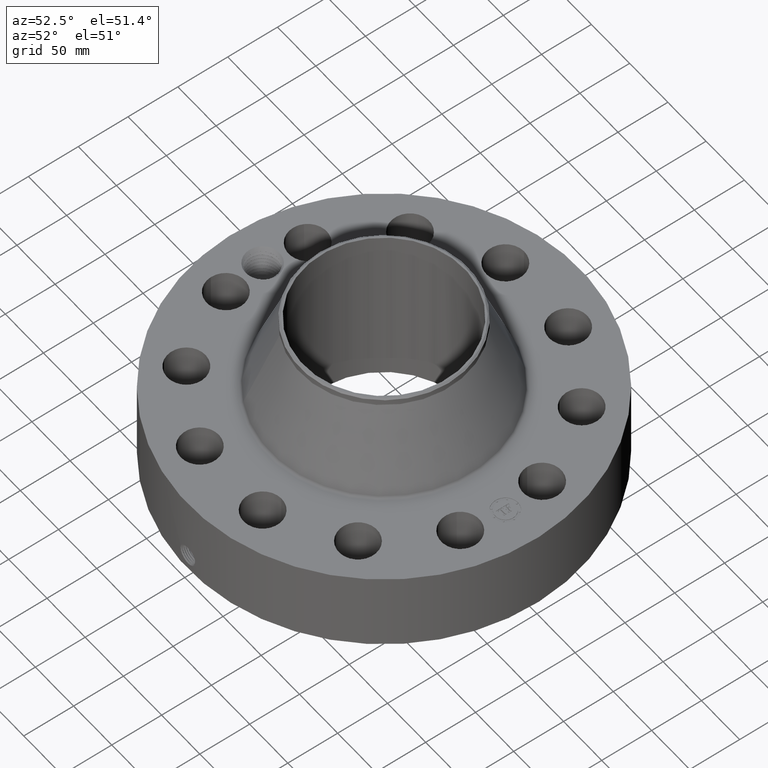
[diagram: clean part render]
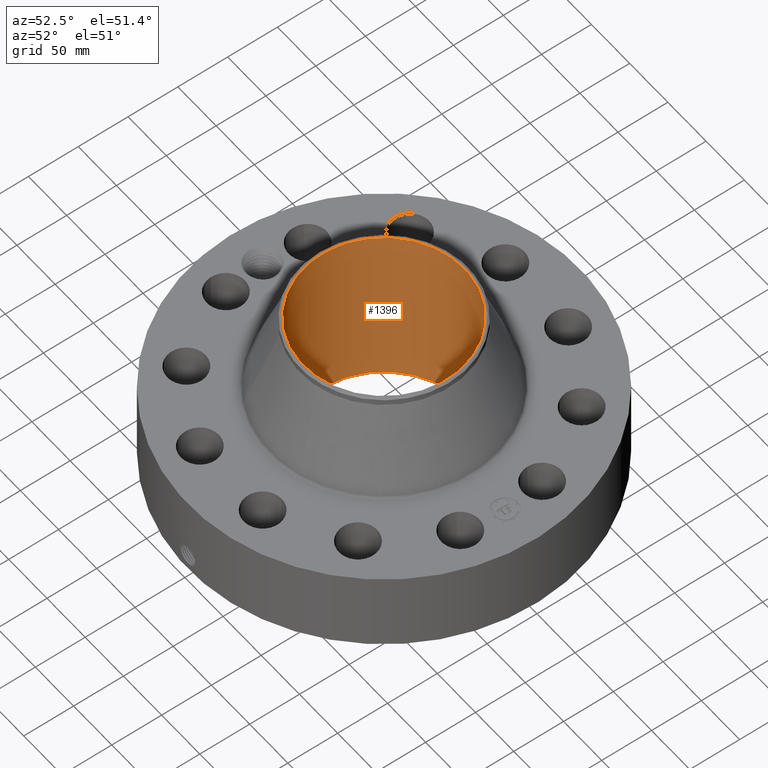
[diagram: same view with one face highlighted and labeled with its STEP entity id]
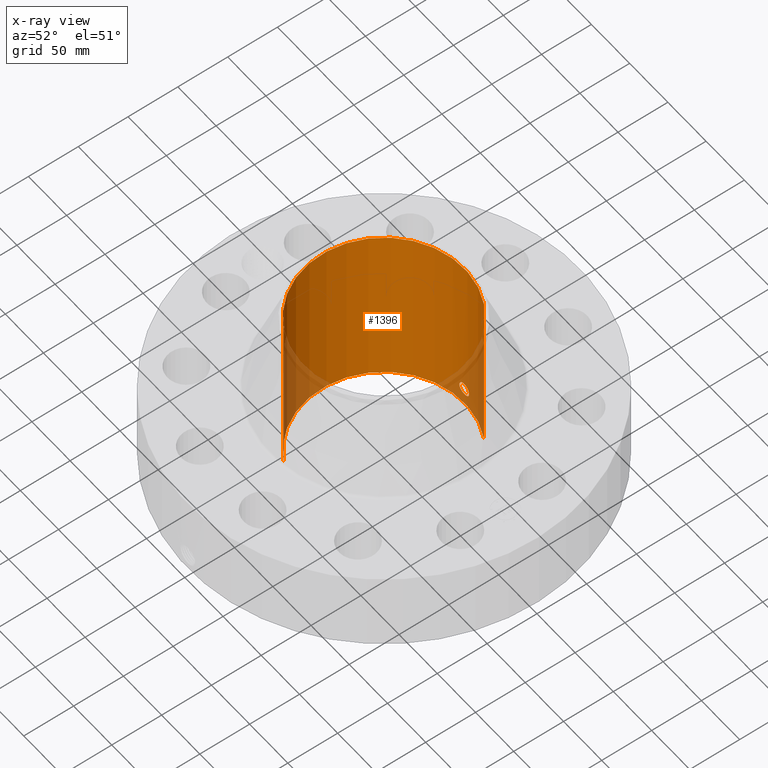
[diagram: x-ray of the same camera — body ghosted, the highlighted face saturated]
A machine part, auxiliary view. The second image highlights one B-rep face of the part: STEP entity #1396.
The next image is the same camera in x-ray: the body ghosted, the highlighted face saturated — about 13% of this face is hidden behind the body in this view.
In plain terms, the highlighted cylindrical surface (partial cylindrical patch) has radius 80.7339 mm, axis along (0, 0, -1).
Its self-contained STEP definition (entity closure, byte-faithful):
#262=AXIS2_PLACEMENT_3D('Circle Axis2P3D',#260,#261,$) ;
#1273=AXIS2_PLACEMENT_3D('Cylinder Axis2P3D',#1270,#1271,#1272) ;
#1345=AXIS2_PLACEMENT_3D('Circle Axis2P3D',#1343,#1344,$) ;
#255=CARTESIAN_POINT('Vertex',(1.52385407446,2.78939617298,0.250000000001)) ;
#257=CARTESIAN_POINT('Vertex',(-1.52385407446,-2.78939617298,0.250000000001)) ;
#260=CARTESIAN_POINT('Axis2P3D Location',(0.,0.,0.250000000001)) ;
#1270=CARTESIAN_POINT('Axis2P3D Location',(0.,0.,3.62500000001)) ;
#1279=CARTESIAN_POINT('Vertex',(1.52385407446,2.78939617298,7.00000000003)) ;
#1281=CARTESIAN_POINT('Vertex',(-1.52385407446,-2.78939617298,7.00000000003)) ;
#1284=CARTESIAN_POINT('Line Origine',(1.52385407446,2.78939617298,3.62500000001)) ;
#1289=CARTESIAN_POINT('Line Origine',(-1.52385407446,-2.78939617298,3.62500000001)) ;
#1343=CARTESIAN_POINT('Axis2P3D Location',(0.,0.,7.00000000003)) ;
#1355=CARTESIAN_POINT('Control Point',(0.219395640473,3.1709190786,1.05985638466)) ;
#1356=CARTESIAN_POINT('Control Point',(0.206922189068,3.17178211572,1.0826888843)) ;
#1357=CARTESIAN_POINT('Control Point',(0.191480810284,3.17278887632,1.10389454379)) ;
#1358=CARTESIAN_POINT('Control Point',(0.173351841678,3.1738614209,1.12296279348)) ;
#1359=CARTESIAN_POINT('Control Point',(0.112183050787,3.1769616099,1.17241635118)) ;
#1360=CARTESIAN_POINT('Control Point',(0.035062488218,3.1789757641,1.19595449785)) ;
#1361=CARTESIAN_POINT('Control Point',(-0.0194750051264,3.17912781359,1.19761225755)) ;
#1362=CARTESIAN_POINT('Control Point',(-0.124035135184,3.17691563962,1.17251375449)) ;
#1363=CARTESIAN_POINT('Control Point',(-0.20306481687,3.17232808007,1.09970151976)) ;
#1364=CARTESIAN_POINT('Control Point',(-0.23206868723,3.17006491948,1.05354325391)) ;
#1365=CARTESIAN_POINT('Control Point',(-0.255816467622,3.16819544329,0.975365092802)) ;
#1366=CARTESIAN_POINT('Control Point',(-0.248325198608,3.16878463345,0.895921162084)) ;
#1367=CARTESIAN_POINT('Control Point',(-0.242090410949,3.16928244519,0.869290623253)) ;
#1368=CARTESIAN_POINT('Control Point',(-0.232341542986,3.17002335263,0.843840930947)) ;
#1369=CARTESIAN_POINT('Control Point',(-0.219395640473,3.1709190786,0.820143615352)) ;
#1370=CARTESIAN_POINT('Vertex',(0.219395640473,3.1709190786,1.05985638466)) ;
#1372=CARTESIAN_POINT('Vertex',(-0.219395640473,3.1709190786,0.820143615352)) ;
#1376=CARTESIAN_POINT('Control Point',(-0.219395640473,3.1709190786,0.820143615352)) ;
#1377=CARTESIAN_POINT('Control Point',(-0.206922189068,3.17178211572,0.797311115707)) ;
#1378=CARTESIAN_POINT('Control Point',(-0.191480810283,3.17278887632,0.776105456221)) ;
#1379=CARTESIAN_POINT('Control Point',(-0.173351841678,3.1738614209,0.757037206527)) ;
#1380=CARTESIAN_POINT('Control Point',(-0.112183050788,3.1769616099,0.707583648829)) ;
#1381=CARTESIAN_POINT('Control Point',(-0.0350624882227,3.1789757641,0.684045502158)) ;
#1382=CARTESIAN_POINT('Control Point',(0.0194750051321,3.17912781359,0.682387742457)) ;
#1383=CARTESIAN_POINT('Control Point',(0.124035135176,3.17691563962,0.707486245522)) ;
#1384=CARTESIAN_POINT('Control Point',(0.203064816856,3.17232808007,0.780298480232)) ;
#1385=CARTESIAN_POINT('Control Point',(0.232068687237,3.17006491948,0.826456746113)) ;
#1386=CARTESIAN_POINT('Control Point',(0.255816467616,3.16819544329,0.9046349072)) ;
#1387=CARTESIAN_POINT('Control Point',(0.248325198611,3.16878463345,0.984078837894)) ;
#1388=CARTESIAN_POINT('Control Point',(0.242090410939,3.16928244519,1.01070937678)) ;
#1389=CARTESIAN_POINT('Control Point',(0.232341542979,3.17002335263,1.03615906907)) ;
#1390=CARTESIAN_POINT('Control Point',(0.219395640473,3.1709190786,1.05985638466)) ;
#261=DIRECTION('Axis2P3D Direction',(0.,0.,-0.0393700787402)) ;
#1271=DIRECTION('Axis2P3D Direction',(0.,0.,-0.0393700787402)) ;
#1272=DIRECTION('Axis2P3D XDirection',(-0.0188750212049,-0.0345504945626,0.)) ;
#1285=DIRECTION('Vector Direction',(0.,0.,-0.0393700787402)) ;
#1290=DIRECTION('Vector Direction',(0.,0.,-0.0393700787402)) ;
#1344=DIRECTION('Axis2P3D Direction',(0.,0.,-0.0393700787402)) ;
#1286=VECTOR('Line Direction',#1285,0.0393700787402) ;
#1291=VECTOR('Line Direction',#1290,0.0393700787402) ;
#1349=ORIENTED_EDGE('',*,*,#1347,.F.) ;
#1350=ORIENTED_EDGE('',*,*,#1293,.T.) ;
#1351=ORIENTED_EDGE('',*,*,#264,.T.) ;
#1352=ORIENTED_EDGE('',*,*,#1288,.F.) ;
#1393=ORIENTED_EDGE('',*,*,#1374,.F.) ;
#1394=ORIENTED_EDGE('',*,*,#1391,.F.) ;
#1395=FACE_BOUND('',#1392,.T.) ;
#1396=ADVANCED_FACE('PartBody',(#1353,#1395),#1274,.F.) ;
#1354=B_SPLINE_CURVE_WITH_KNOTS('',5,(#1355,#1356,#1357,#1358,#1359,#1360,#1361,#1362,#1363,#1364,#1365,#1366,#1367,#1368,#1369),.UNSPECIFIED.,.F.,.U.,(6,3,3,3,6),(0.,4.67544549464,14.0204359558,23.370338941,28.2228741061),.UNSPECIFIED.) ;
#1375=B_SPLINE_CURVE_WITH_KNOTS('',5,(#1376,#1377,#1378,#1379,#1380,#1381,#1382,#1383,#1384,#1385,#1386,#1387,#1388,#1389,#1390),.UNSPECIFIED.,.F.,.U.,(6,3,3,3,6),(0.,4.67544549467,14.0204359554,23.370338939,28.2228741014),.UNSPECIFIED.) ;
#263=CIRCLE('generated circle',#262,3.17850000001) ;
#1346=CIRCLE('generated circle',#1345,3.17850000001) ;
#1274=CYLINDRICAL_SURFACE('generated cylinder',#1273,3.17850000001) ;
#264=EDGE_CURVE('',#258,#256,#263,.T.) ;
#1288=EDGE_CURVE('',#1280,#256,#1287,.T.) ;
#1293=EDGE_CURVE('',#1282,#258,#1292,.T.) ;
#1347=EDGE_CURVE('',#1282,#1280,#1346,.T.) ;
#1374=EDGE_CURVE('',#1371,#1373,#1354,.T.) ;
#1391=EDGE_CURVE('',#1373,#1371,#1375,.T.) ;
#1348=EDGE_LOOP('',(#1349,#1350,#1351,#1352)) ;
#1392=EDGE_LOOP('',(#1393,#1394)) ;
#1353=FACE_OUTER_BOUND('',#1348,.T.) ;
#1287=LINE('Line',#1284,#1286) ;
#1292=LINE('Line',#1289,#1291) ;
#256=VERTEX_POINT('',#255) ;
#258=VERTEX_POINT('',#257) ;
#1280=VERTEX_POINT('',#1279) ;
#1282=VERTEX_POINT('',#1281) ;
#1371=VERTEX_POINT('',#1370) ;
#1373=VERTEX_POINT('',#1372) ;